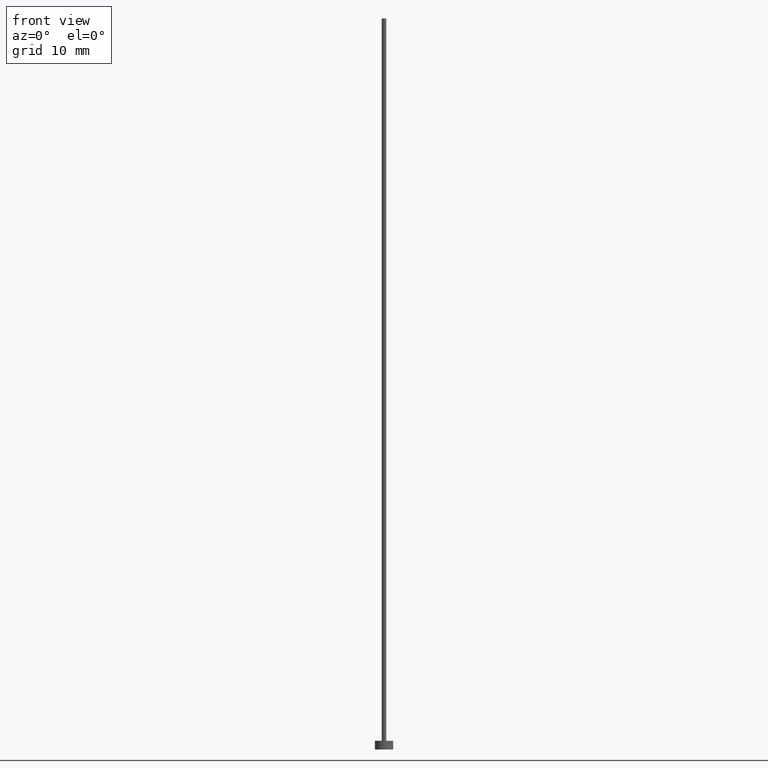
[diagram: clean part render]
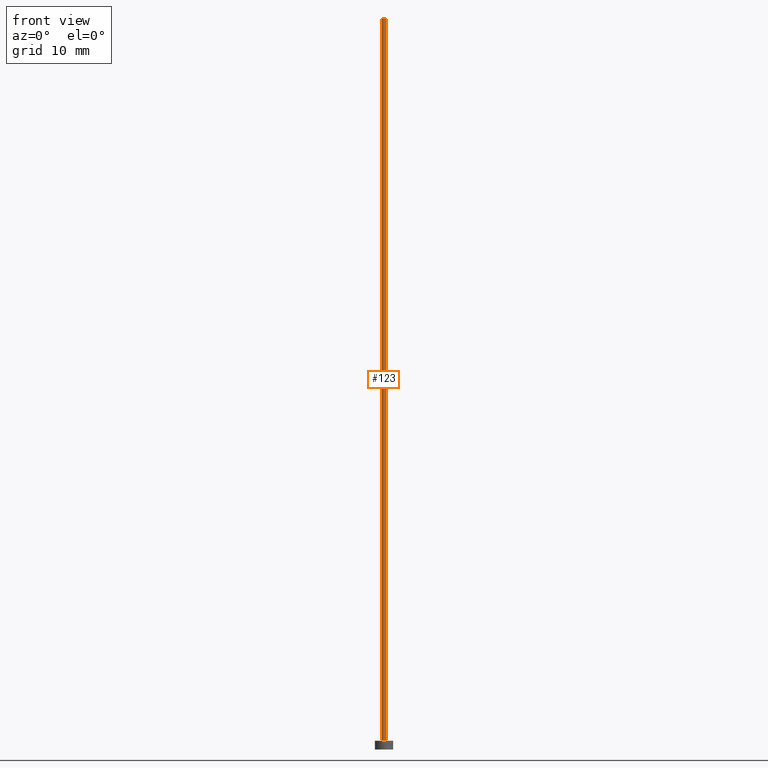
[diagram: same view with one face highlighted and labeled with its STEP entity id]
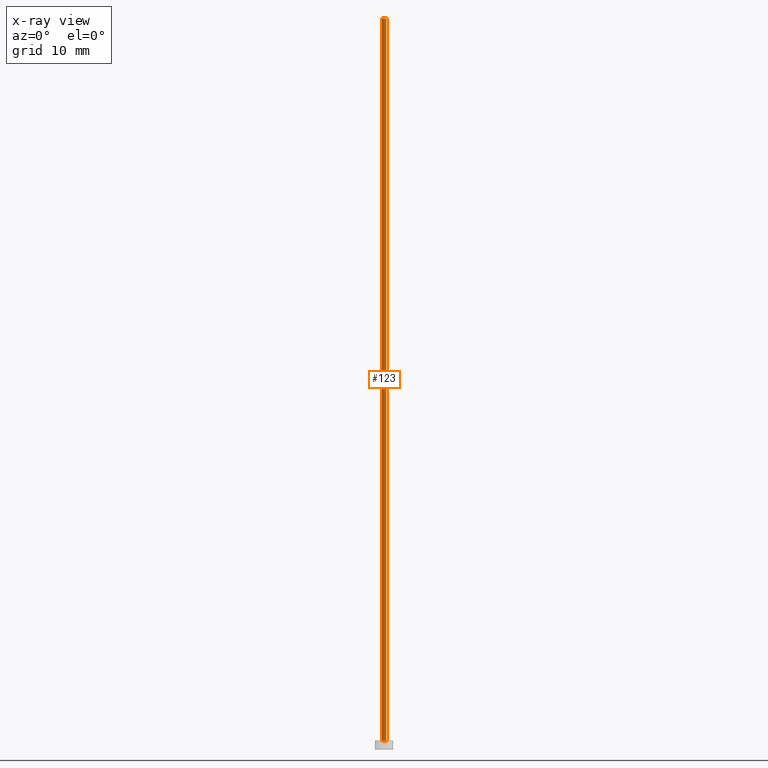
[diagram: x-ray of the same camera — body ghosted, the highlighted face saturated]
A machine part, front view. The second image highlights one B-rep face of the part: STEP entity #123.
The next image is the same camera in x-ray: the body ghosted, the highlighted face saturated — about 0% of this face is hidden behind the body in this view.
In plain terms, the highlighted cylindrical surface (edge-blend (fillet) strip) has radius 0.3 mm, axis along (-0, -0, -1).
Its self-contained STEP definition (entity closure, byte-faithful):
#3 = AXIS2_PLACEMENT_3D ( 'NONE', #34, #226, #188 ) ;
#5 = CIRCLE ( 'NONE', #230, 0.2999999999999999889 ) ;
#7 = DIRECTION ( 'NONE',  ( -0.000000000000000000, -0.000000000000000000, -1.000000000000000000 ) ) ;
#9 = DIRECTION ( 'NONE',  ( 0.000000000000000000, 0.000000000000000000, 1.000000000000000000 ) ) ;
#20 = VERTEX_POINT ( 'NONE', #122 ) ;
#25 = CYLINDRICAL_SURFACE ( 'NONE', #176, 0.2999999999999999889 ) ;
#31 = EDGE_LOOP ( 'NONE', ( #185, #54, #166, #253 ) ) ;
#34 = CARTESIAN_POINT ( 'NONE',  ( 0.000000000000000000, 0.000000000000000000, 100.0000000000000000 ) ) ;
#35 = VERTEX_POINT ( 'NONE', #179 ) ;
#38 = EDGE_CURVE ( 'NONE', #35, #207, #5, .T. ) ;
#40 = VERTEX_POINT ( 'NONE', #222 ) ;
#42 = VECTOR ( 'NONE', #7, 1000.000000000000000 ) ;
#44 = DIRECTION ( 'NONE',  ( -1.000000000000000000, 0.000000000000000000, 0.000000000000000000 ) ) ;
#54 = ORIENTED_EDGE ( 'NONE', *, *, #167, .F. ) ;
#66 = VECTOR ( 'NONE', #71, 1000.000000000000000 ) ;
#71 = DIRECTION ( 'NONE',  ( -0.000000000000000000, -0.000000000000000000, -1.000000000000000000 ) ) ;
#85 = EDGE_CURVE ( 'NONE', #20, #35, #106, .T. ) ;
#100 = CARTESIAN_POINT ( 'NONE',  ( 0.000000000000000000, 0.000000000000000000, 1.199999999999999956 ) ) ;
#101 = LINE ( 'NONE', #136, #66 ) ;
#102 = EDGE_CURVE ( 'NONE', #40, #207, #101, .T. ) ;
#106 = LINE ( 'NONE', #183, #42 ) ;
#119 = DIRECTION ( 'NONE',  ( 1.000000000000000000, 0.000000000000000000, 0.000000000000000000 ) ) ;
#122 = CARTESIAN_POINT ( 'NONE',  ( -0.2999999999999999889, 0.000000000000000000, 100.0000000000000000 ) ) ;
#123 = ADVANCED_FACE ( 'NONE', ( #223 ), #25, .T. ) ;
#136 = CARTESIAN_POINT ( 'NONE',  ( 0.2999999999999999889, 3.673940397442058882E-17, 100.0000000000000000 ) ) ;
#137 = CARTESIAN_POINT ( 'NONE',  ( 0.000000000000000000, 0.000000000000000000, 100.0000000000000000 ) ) ;
#160 = CIRCLE ( 'NONE', #3, 0.2999999999999999889 ) ;
#166 = ORIENTED_EDGE ( 'NONE', *, *, #85, .T. ) ;
#167 = EDGE_CURVE ( 'NONE', #20, #40, #160, .T. ) ;
#176 = AXIS2_PLACEMENT_3D ( 'NONE', #137, #218, #44 ) ;
#179 = CARTESIAN_POINT ( 'NONE',  ( -0.2999999999999999889, 0.000000000000000000, 1.199999999999999956 ) ) ;
#183 = CARTESIAN_POINT ( 'NONE',  ( -0.2999999999999999889, 0.000000000000000000, 100.0000000000000000 ) ) ;
#185 = ORIENTED_EDGE ( 'NONE', *, *, #102, .F. ) ;
#188 = DIRECTION ( 'NONE',  ( 1.000000000000000000, 0.000000000000000000, 0.000000000000000000 ) ) ;
#207 = VERTEX_POINT ( 'NONE', #238 ) ;
#218 = DIRECTION ( 'NONE',  ( -0.000000000000000000, -0.000000000000000000, -1.000000000000000000 ) ) ;
#222 = CARTESIAN_POINT ( 'NONE',  ( 0.2999999999999999889, 3.673940397442058882E-17, 100.0000000000000000 ) ) ;
#223 = FACE_OUTER_BOUND ( 'NONE', #31, .T. ) ;
#226 = DIRECTION ( 'NONE',  ( 0.000000000000000000, 0.000000000000000000, 1.000000000000000000 ) ) ;
#230 = AXIS2_PLACEMENT_3D ( 'NONE', #100, #9, #119 ) ;
#238 = CARTESIAN_POINT ( 'NONE',  ( 0.2999999999999999889, 3.673940397442058882E-17, 1.199999999999999956 ) ) ;
#253 = ORIENTED_EDGE ( 'NONE', *, *, #38, .T. ) ;